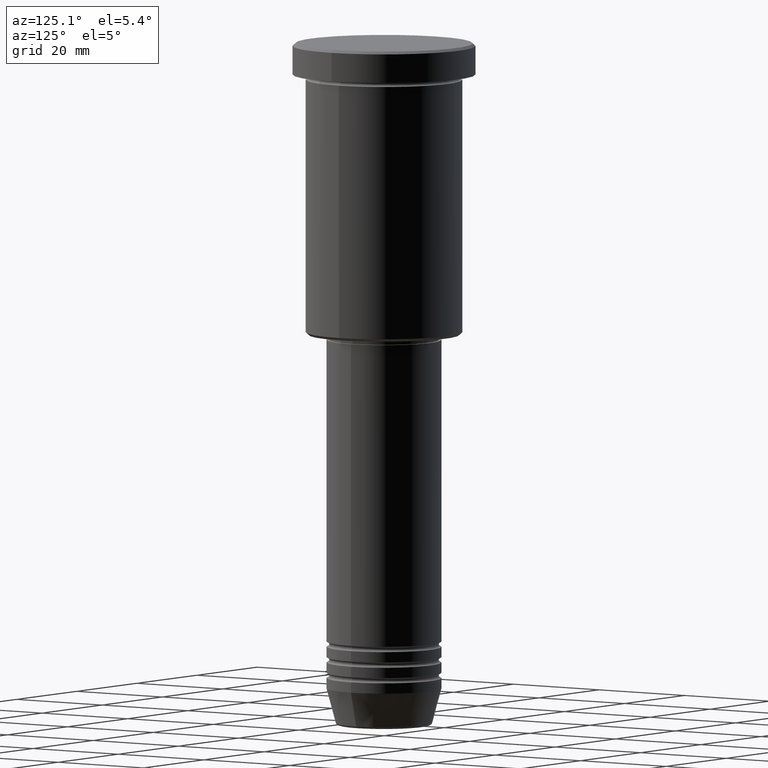
[diagram: clean part render]
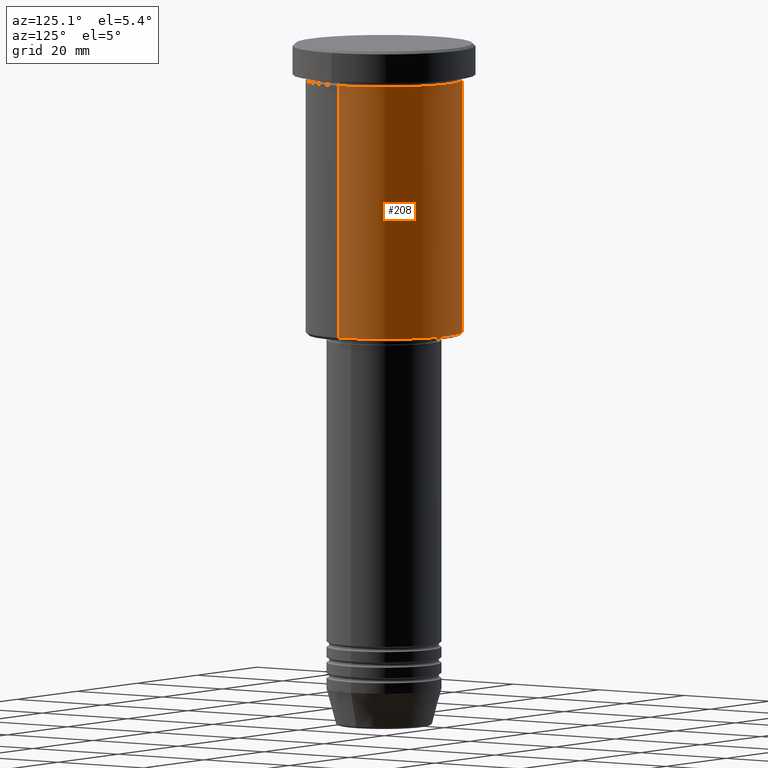
[diagram: same view with one face highlighted and labeled with its STEP entity id]
A machine part, auxiliary view. The second image highlights one B-rep face of the part: STEP entity #208.
In plain terms, the highlighted cylindrical surface (partial cylindrical patch) has radius 15 mm, axis along (-0, -0, 1).
Its self-contained STEP definition (entity closure, byte-faithful):
#6 = CIRCLE ( 'NONE', #785, 15.00000000000000000 ) ;
#86 = CARTESIAN_POINT ( 'NONE',  ( -15.00000000000000000, 1.836970198721029589E-15, 0.000000000000000000 ) ) ;
#126 = CARTESIAN_POINT ( 'NONE',  ( 15.00000000000000000, 0.000000000000000000, 0.000000000000000000 ) ) ;
#178 = LINE ( 'NONE', #86, #1011 ) ;
#188 = FACE_OUTER_BOUND ( 'NONE', #774, .T. ) ;
#191 = DIRECTION ( 'NONE',  ( 1.000000000000000000, 0.000000000000000000, 0.000000000000000000 ) ) ;
#204 = DIRECTION ( 'NONE',  ( -0.000000000000000000, -0.000000000000000000, 1.000000000000000000 ) ) ;
#208 = ADVANCED_FACE ( 'NONE', ( #188 ), #735, .T. ) ;
#216 = DIRECTION ( 'NONE',  ( -0.000000000000000000, -0.000000000000000000, 1.000000000000000000 ) ) ;
#241 = AXIS2_PLACEMENT_3D ( 'NONE', #750, #204, #1012 ) ;
#319 = LINE ( 'NONE', #126, #748 ) ;
#408 = EDGE_CURVE ( 'NONE', #813, #605, #6, .T. ) ;
#416 = VERTEX_POINT ( 'NONE', #958 ) ;
#421 = ORIENTED_EDGE ( 'NONE', *, *, #1089, .F. ) ;
#467 = CIRCLE ( 'NONE', #241, 15.00000000000000000 ) ;
#510 = EDGE_CURVE ( 'NONE', #605, #606, #178, .T. ) ;
#529 = DIRECTION ( 'NONE',  ( -0.000000000000000000, -0.000000000000000000, 1.000000000000000000 ) ) ;
#563 = CARTESIAN_POINT ( 'NONE',  ( -15.00000000000000000, 1.836970198721029589E-15, -55.49999999999997868 ) ) ;
#597 = CARTESIAN_POINT ( 'NONE',  ( 15.00000000000000000, 0.000000000000000000, -55.49999999999997868 ) ) ;
#605 = VERTEX_POINT ( 'NONE', #563 ) ;
#606 = VERTEX_POINT ( 'NONE', #1100 ) ;
#611 = CARTESIAN_POINT ( 'NONE',  ( 0.000000000000000000, 0.000000000000000000, -55.49999999999997868 ) ) ;
#641 = CARTESIAN_POINT ( 'NONE',  ( 0.000000000000000000, 0.000000000000000000, 0.000000000000000000 ) ) ;
#683 = ORIENTED_EDGE ( 'NONE', *, *, #408, .T. ) ;
#718 = DIRECTION ( 'NONE',  ( -0.000000000000000000, -0.000000000000000000, 1.000000000000000000 ) ) ;
#735 = CYLINDRICAL_SURFACE ( 'NONE', #978, 15.00000000000000000 ) ;
#748 = VECTOR ( 'NONE', #216, 1000.000000000000000 ) ;
#750 = CARTESIAN_POINT ( 'NONE',  ( 0.000000000000000000, 0.000000000000000000, -6.999999999999995559 ) ) ;
#774 = EDGE_LOOP ( 'NONE', ( #683, #863, #421, #797 ) ) ;
#785 = AXIS2_PLACEMENT_3D ( 'NONE', #611, #529, #889 ) ;
#797 = ORIENTED_EDGE ( 'NONE', *, *, #1117, .F. ) ;
#813 = VERTEX_POINT ( 'NONE', #597 ) ;
#863 = ORIENTED_EDGE ( 'NONE', *, *, #510, .T. ) ;
#889 = DIRECTION ( 'NONE',  ( -1.000000000000000000, 0.000000000000000000, 0.000000000000000000 ) ) ;
#958 = CARTESIAN_POINT ( 'NONE',  ( 15.00000000000000000, 0.000000000000000000, -6.999999999999995559 ) ) ;
#978 = AXIS2_PLACEMENT_3D ( 'NONE', #641, #994, #191 ) ;
#994 = DIRECTION ( 'NONE',  ( -0.000000000000000000, -0.000000000000000000, 1.000000000000000000 ) ) ;
#1011 = VECTOR ( 'NONE', #718, 1000.000000000000000 ) ;
#1012 = DIRECTION ( 'NONE',  ( 1.000000000000000000, 0.000000000000000000, 0.000000000000000000 ) ) ;
#1089 = EDGE_CURVE ( 'NONE', #416, #606, #467, .T. ) ;
#1100 = CARTESIAN_POINT ( 'NONE',  ( -15.00000000000000000, 1.836970198721029589E-15, -6.999999999999995559 ) ) ;
#1117 = EDGE_CURVE ( 'NONE', #813, #416, #319, .T. ) ;